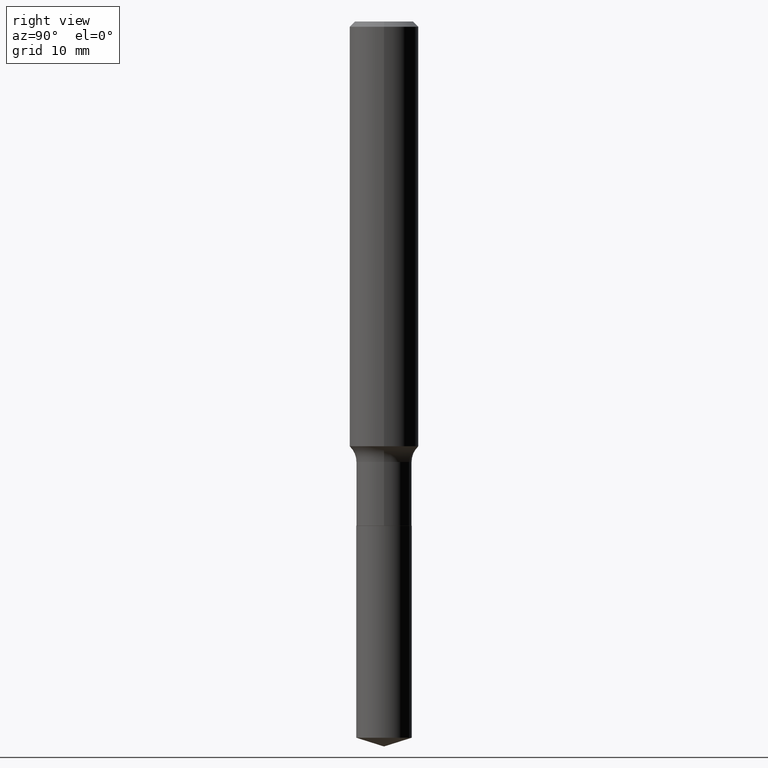
[diagram: clean part render]
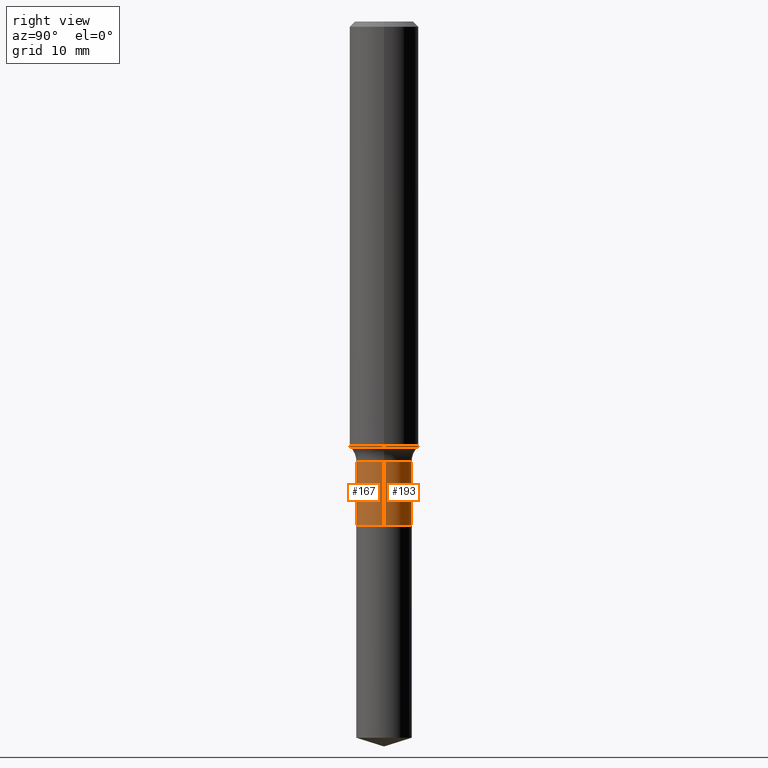
[diagram: same view with one multi-face feature highlighted, each face labeled with its STEP entity id]
A machine part, right view. The highlighted faces form ONE feature: a constant-radius fillet chain: 2 tangent blend faces with common blend radius 2.5527 mm. The faces share edges in the B-rep.
Their STEP definitions:
[1] entity #167 (Cylinder):
#12 = DIRECTION ( 'NONE',  ( -2.445468806185136877E-29, 3.491481338843145188E-15, 1.000000000000000000 ) ) ;
#14 = FACE_OUTER_BOUND ( 'NONE', #299, .T. ) ;
#16 = EDGE_CURVE ( 'NONE', #181, #146, #164, .T. ) ;
#30 = EDGE_CURVE ( 'NONE', #88, #146, #55, .T. ) ;
#33 = VERTEX_POINT ( 'NONE', #237 ) ;
#55 = CIRCLE ( 'NONE', #411, 0.1004999999999999782 ) ;
#85 = ORIENTED_EDGE ( 'NONE', *, *, #447, .F. ) ;
#88 = VERTEX_POINT ( 'NONE', #138 ) ;
#90 = DIRECTION ( 'NONE',  ( 1.000000000000000000, -6.982962677686261977E-15, 0.000000000000000000 ) ) ;
#93 = DIRECTION ( 'NONE',  ( -2.445468806185136877E-29, 3.491481338843145188E-15, 1.000000000000000000 ) ) ;
#97 = CARTESIAN_POINT ( 'NONE',  ( 4.464203305690967315E-29, -6.373699184058162754E-15, -1.825500000000000345 ) ) ;
#109 = VECTOR ( 'NONE', #12, 39.37007874015748143 ) ;
#116 = DIRECTION ( 'NONE',  ( -2.445468806185136597E-29, 3.491481338843145583E-15, 1.000000000000000000 ) ) ;
#123 = LINE ( 'NONE', #198, #351 ) ;
#138 = CARTESIAN_POINT ( 'NONE',  ( -0.1004999999999999782, -5.256861362183704782E-15, -1.594800000000000217 ) ) ;
#146 = VERTEX_POINT ( 'NONE', #392 ) ;
#148 = ORIENTED_EDGE ( 'NONE', *, *, #16, .T. ) ;
#164 = LINE ( 'NONE', #313, #109 ) ;
#166 = CARTESIAN_POINT ( 'NONE',  ( 3.900033652104055886E-29, -5.568214439187049453E-15, -1.594800000000000217 ) ) ;
#167 = ADVANCED_FACE ( 'NONE', ( #14 ), #364, .T. ) ;
#168 = DIRECTION ( 'NONE',  ( 1.000000000000000000, -6.982962677686270655E-15, 0.000000000000000000 ) ) ;
#169 = DIRECTION ( 'NONE',  ( 1.000000000000000000, -6.982962677686266711E-15, 4.876176775795935793E-29 ) ) ;
#176 = AXIS2_PLACEMENT_3D ( 'NONE', #97, #471, #168 ) ;
#181 = VERTEX_POINT ( 'NONE', #241 ) ;
#198 = CARTESIAN_POINT ( 'NONE',  ( -0.1004999999999999921, 7.140954494389006308E-16, -4.943529765706180112E-30 ) ) ;
#208 = CIRCLE ( 'NONE', #176, 0.1004999999999999921 ) ;
#237 = CARTESIAN_POINT ( 'NONE',  ( -0.1004999999999999921, -5.256861362183704782E-15, -1.825500000000000345 ) ) ;
#241 = CARTESIAN_POINT ( 'NONE',  ( 0.1004999999999999921, -7.075486933165632432E-15, -1.825500000000000345 ) ) ;
#284 = CARTESIAN_POINT ( 'NONE',  ( 0.000000000000000000, 0.000000000000000000, 0.000000000000000000 ) ) ;
#299 = EDGE_LOOP ( 'NONE', ( #85, #450, #148, #414 ) ) ;
#313 = CARTESIAN_POINT ( 'NONE',  ( 0.1004999999999999921, -7.017877491074697768E-16, 4.900557659674914995E-30 ) ) ;
#325 = DIRECTION ( 'NONE',  ( -2.445468806185136597E-29, 3.491481338843145583E-15, 1.000000000000000000 ) ) ;
#351 = VECTOR ( 'NONE', #93, 39.37007874015748143 ) ;
#364 = CYLINDRICAL_SURFACE ( 'NONE', #366, 0.1004999999999999921 ) ;
#366 = AXIS2_PLACEMENT_3D ( 'NONE', #284, #325, #169 ) ;
#376 = EDGE_CURVE ( 'NONE', #33, #181, #208, .T. ) ;
#392 = CARTESIAN_POINT ( 'NONE',  ( 0.1004999999999999782, -6.270002188294518342E-15, -1.594800000000000217 ) ) ;
#411 = AXIS2_PLACEMENT_3D ( 'NONE', #166, #116, #90 ) ;
#414 = ORIENTED_EDGE ( 'NONE', *, *, #30, .F. ) ;
#447 = EDGE_CURVE ( 'NONE', #33, #88, #123, .T. ) ;
#450 = ORIENTED_EDGE ( 'NONE', *, *, #376, .T. ) ;
#471 = DIRECTION ( 'NONE',  ( -2.445468806185136597E-29, 3.491481338843145583E-15, 1.000000000000000000 ) ) ;
[2] entity #193 (Cylinder):
#6 = ORIENTED_EDGE ( 'NONE', *, *, #405, .F. ) ;
#12 = DIRECTION ( 'NONE',  ( -2.445468806185136877E-29, 3.491481338843145188E-15, 1.000000000000000000 ) ) ;
#16 = EDGE_CURVE ( 'NONE', #181, #146, #164, .T. ) ;
#22 = CYLINDRICAL_SURFACE ( 'NONE', #257, 0.1004999999999999921 ) ;
#33 = VERTEX_POINT ( 'NONE', #237 ) ;
#53 = DIRECTION ( 'NONE',  ( -2.445468806185136597E-29, 3.491481338843145583E-15, 1.000000000000000000 ) ) ;
#66 = AXIS2_PLACEMENT_3D ( 'NONE', #308, #53, #201 ) ;
#88 = VERTEX_POINT ( 'NONE', #138 ) ;
#89 = DIRECTION ( 'NONE',  ( 1.000000000000000000, -6.982962677686261977E-15, 0.000000000000000000 ) ) ;
#93 = DIRECTION ( 'NONE',  ( -2.445468806185136877E-29, 3.491481338843145188E-15, 1.000000000000000000 ) ) ;
#100 = AXIS2_PLACEMENT_3D ( 'NONE', #429, #204, #89 ) ;
#105 = ORIENTED_EDGE ( 'NONE', *, *, #447, .T. ) ;
#109 = VECTOR ( 'NONE', #12, 39.37007874015748143 ) ;
#123 = LINE ( 'NONE', #198, #351 ) ;
#132 = DIRECTION ( 'NONE',  ( -2.445468806185136597E-29, 3.491481338843145583E-15, 1.000000000000000000 ) ) ;
#138 = CARTESIAN_POINT ( 'NONE',  ( -0.1004999999999999782, -5.256861362183704782E-15, -1.594800000000000217 ) ) ;
#146 = VERTEX_POINT ( 'NONE', #392 ) ;
#164 = LINE ( 'NONE', #313, #109 ) ;
#181 = VERTEX_POINT ( 'NONE', #241 ) ;
#193 = ADVANCED_FACE ( 'NONE', ( #247 ), #22, .T. ) ;
#198 = CARTESIAN_POINT ( 'NONE',  ( -0.1004999999999999921, 7.140954494389006308E-16, -4.943529765706180112E-30 ) ) ;
#201 = DIRECTION ( 'NONE',  ( 1.000000000000000000, -6.982962677686270655E-15, 0.000000000000000000 ) ) ;
#204 = DIRECTION ( 'NONE',  ( -2.445468806185136597E-29, 3.491481338843145583E-15, 1.000000000000000000 ) ) ;
#215 = ORIENTED_EDGE ( 'NONE', *, *, #16, .F. ) ;
#237 = CARTESIAN_POINT ( 'NONE',  ( -0.1004999999999999921, -5.256861362183704782E-15, -1.825500000000000345 ) ) ;
#241 = CARTESIAN_POINT ( 'NONE',  ( 0.1004999999999999921, -7.075486933165632432E-15, -1.825500000000000345 ) ) ;
#247 = FACE_OUTER_BOUND ( 'NONE', #409, .T. ) ;
#257 = AXIS2_PLACEMENT_3D ( 'NONE', #395, #132, #359 ) ;
#308 = CARTESIAN_POINT ( 'NONE',  ( 4.464203305690967315E-29, -6.373699184058162754E-15, -1.825500000000000345 ) ) ;
#313 = CARTESIAN_POINT ( 'NONE',  ( 0.1004999999999999921, -7.017877491074697768E-16, 4.900557659674914995E-30 ) ) ;
#351 = VECTOR ( 'NONE', #93, 39.37007874015748143 ) ;
#358 = CIRCLE ( 'NONE', #100, 0.1004999999999999782 ) ;
#359 = DIRECTION ( 'NONE',  ( 1.000000000000000000, -6.982962677686266711E-15, 4.876176775795935793E-29 ) ) ;
#392 = CARTESIAN_POINT ( 'NONE',  ( 0.1004999999999999782, -6.270002188294518342E-15, -1.594800000000000217 ) ) ;
#395 = CARTESIAN_POINT ( 'NONE',  ( 0.000000000000000000, 0.000000000000000000, 0.000000000000000000 ) ) ;
#396 = CIRCLE ( 'NONE', #66, 0.1004999999999999921 ) ;
#405 = EDGE_CURVE ( 'NONE', #146, #88, #358, .T. ) ;
#409 = EDGE_LOOP ( 'NONE', ( #461, #105, #6, #215 ) ) ;
#429 = CARTESIAN_POINT ( 'NONE',  ( 3.900033652104055886E-29, -5.568214439187049453E-15, -1.594800000000000217 ) ) ;
#447 = EDGE_CURVE ( 'NONE', #33, #88, #123, .T. ) ;
#461 = ORIENTED_EDGE ( 'NONE', *, *, #479, .T. ) ;
#479 = EDGE_CURVE ( 'NONE', #181, #33, #396, .T. ) ;